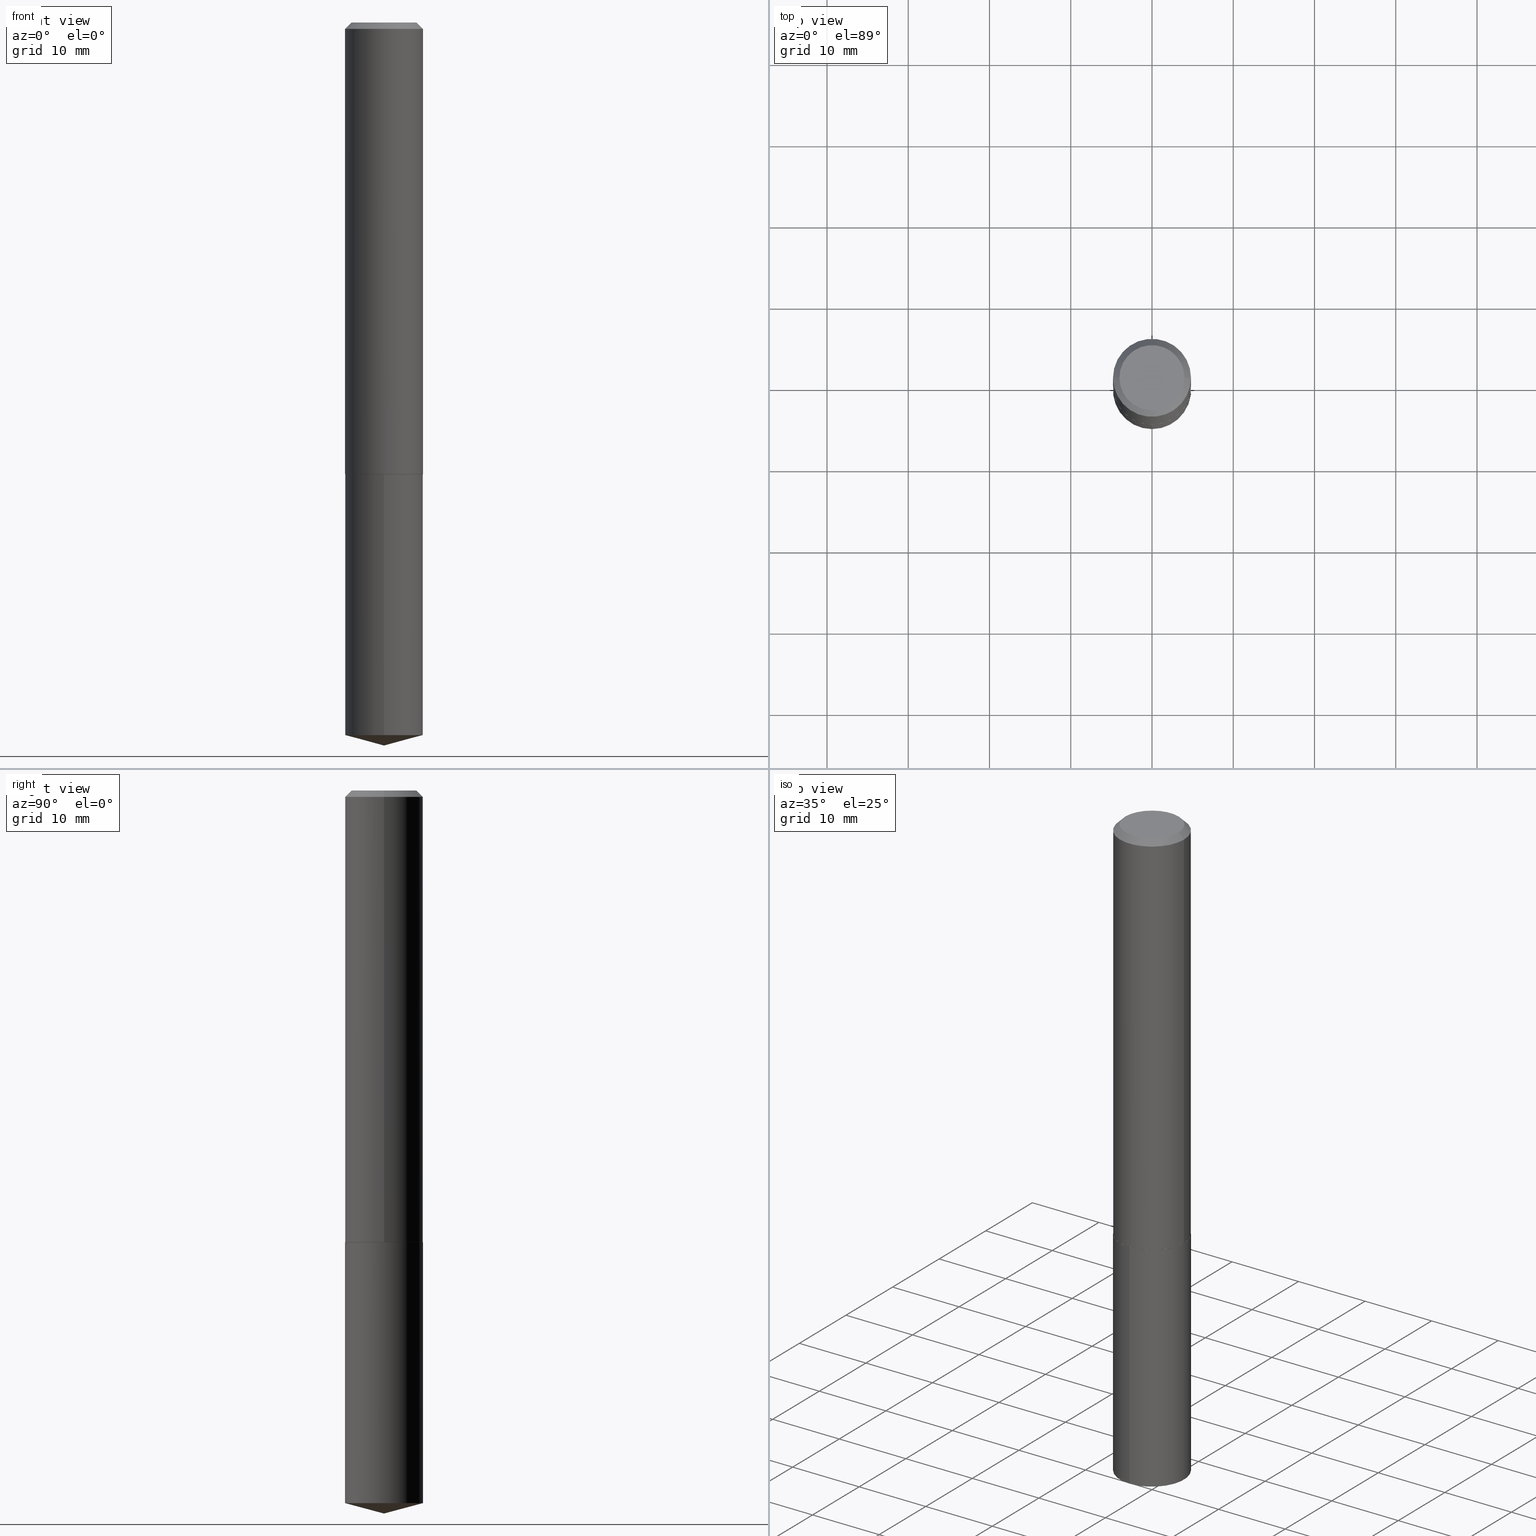
[diagram: canonical four-view strip — front | top / right | iso, engineering-drawing reading convention]
A machine part, canonical four-view strip (front | top / right | iso — engineering-drawing reading convention). The complete STEP part file that produces these views, byte-faithful:
ISO-10303-21;
HEADER;
FILE_DESCRIPTION (( 'STEP AP203' ),
    '1' );
FILE_NAME ('63084.STEP',
    '2024-04-23T09:49:28',
    ( '' ),
    ( '' ),
    'SwSTEP 2.0',
    'SolidWorks 2023',
    '' );
FILE_SCHEMA (( 'CONFIG_CONTROL_DESIGN' ));
ENDSEC;

DATA;
#1 = DATE_AND_TIME ( #26, #334 ) ;
#2 = CARTESIAN_POINT ( 'NONE',  ( 7.642090019328602662E-31, -1.091087918388490267E-16, -0.03125000000000020817 ) ) ;
#3 = APPROVAL_ROLE ( '' ) ;
#4 = VERTEX_POINT ( 'NONE', #370 ) ;
#5 = DIRECTION ( 'NONE',  ( 1.000000000000000000, -6.982962677686266711E-15, 4.876176775795936353E-29 ) ) ;
#6 = ORIENTED_EDGE ( 'NONE', *, *, #149, .T. ) ;
#7 = ORIENTED_EDGE ( 'NONE', *, *, #362, .T. ) ;
#8 = CARTESIAN_POINT ( 'NONE',  ( 0.000000000000000000, 0.000000000000000000, 0.000000000000000000 ) ) ;
#9 = EDGE_LOOP ( 'NONE', ( #17, #282 ) ) ;
#10 = CC_DESIGN_DATE_AND_TIME_ASSIGNMENT ( #182, #302, ( #49 ) ) ;
#11 = ORIENTED_EDGE ( 'NONE', *, *, #207, .F. ) ;
#12 = CIRCLE ( 'NONE', #366, 0.1577499999999999736 ) ;
#13 = CIRCLE ( 'NONE', #374, 0.1577499999999999736 ) ;
#14 = VECTOR ( 'NONE', #109, 39.37007874015748854 ) ;
#15 = VERTEX_POINT ( 'NONE', #200 ) ;
#16 = CARTESIAN_POINT ( 'NONE',  ( 8.444674337190745942E-29, -1.205721276165754944E-14, -3.453257602630517731 ) ) ;
#17 = ORIENTED_EDGE ( 'NONE', *, *, #161, .T. ) ;
#18 = FACE_OUTER_BOUND ( 'NONE', #9, .T. ) ;
#19 = DIRECTION ( 'NONE',  ( -2.445342716562640584E-29, 3.491661906359135627E-15, 1.000000000000000000 ) ) ;
#20 = CARTESIAN_POINT ( 'NONE',  ( 8.568236344563835167E-29, -1.223443415369177470E-14, -3.503899999999999793 ) ) ;
#21 = CARTESIAN_POINT ( 'NONE',  ( -8.770482294299429228E-28, 1.252329652959682702E-13, 35.86617874015747987 ) ) ;
#22 = DIRECTION ( 'NONE',  ( -2.445342716562640584E-29, 3.491661906359135627E-15, 1.000000000000000000 ) ) ;
#23 = EDGE_CURVE ( 'NONE', #15, #308, #169, .T. ) ;
#24 = VECTOR ( 'NONE', #291, 39.37007874015748143 ) ;
#25 = CALENDAR_DATE ( 2024, 23, 4 ) ;
#26 = CALENDAR_DATE ( 2024, 23, 4 ) ;
#27 = PERSON_AND_ORGANIZATION ( #304, #64 ) ;
#28 = AXIS2_PLACEMENT_3D ( 'NONE', #77, #168, #107 ) ;
#29 = AXIS2_PLACEMENT_3D ( 'NONE', #261, #321, #102 ) ;
#30 = APPROVAL_STATUS ( 'not_yet_approved' ) ;
#31 = DIRECTION ( 'NONE',  ( -2.445468806185136597E-29, 3.491481338843145583E-15, 1.000000000000000000 ) ) ;
#32 = CYLINDRICAL_SURFACE ( 'NONE', #351, 0.1890000000000000846 ) ;
#33 = CONICAL_SURFACE ( 'NONE', #307, 0.1890000000000002234, 0.7853981633974482790 ) ;
#34 = MANIFOLD_SOLID_BREP ( 'Body-Move/Copy2[2]', #97 ) ;
#35 = EDGE_LOOP ( 'NONE', ( #226, #331, #333, #157 ) ) ;
#36 = ORIENTED_EDGE ( 'NONE', *, *, #46, .T. ) ;
#37 = VERTEX_POINT ( 'NONE', #224 ) ;
#38 = LOCAL_TIME ( 5, 49, 28.00000000000000000, #274 ) ;
#39 = APPROVAL ( #30, 'UNSPECIFIED' ) ;
#40 =( CONVERSION_BASED_UNIT ( 'INCH', #192 ) LENGTH_UNIT ( ) NAMED_UNIT ( #147 ) );
#41 = ORIENTED_EDGE ( 'NONE', *, *, #258, .T. ) ;
#42 = CARTESIAN_POINT ( 'NONE',  ( 7.642090019328602662E-31, -1.091087918388490267E-16, -0.03125000000000020817 ) ) ;
#43 = DIRECTION ( 'NONE',  ( 1.000000000000000000, -6.982962677686262766E-15, 0.000000000000000000 ) ) ;
#44 = CARTESIAN_POINT ( 'NONE',  ( 5.353131216739262468E-29, -7.642852650727643969E-15, -2.188999999999999613 ) ) ;
#45 = CARTESIAN_POINT ( 'NONE',  ( 0.1889999999999999736, -1.428888737921553328E-15, -0.03125000000000020817 ) ) ;
#46 = EDGE_CURVE ( 'NONE', #336, #344, #193, .T. ) ;
#47 = ADVANCED_FACE ( 'NONE', ( #372 ), #104, .T. ) ;
#48 = EDGE_LOOP ( 'NONE', ( #347, #222, #252, #159 ) ) ;
#49 = SECURITY_CLASSIFICATION ( '', '', #357 ) ;
#50 = DIRECTION ( 'NONE',  ( 1.000000000000000000, -6.982962677686266711E-15, 4.876176521701035620E-29 ) ) ;
#51 = LINE ( 'NONE', #172, #24 ) ;
#52 = CC_DESIGN_PERSON_AND_ORGANIZATION_ASSIGNMENT ( #238, #150, ( #178 ) ) ;
#53 = ORIENTED_EDGE ( 'NONE', *, *, #240, .F. ) ;
#54 = FACE_OUTER_BOUND ( 'NONE', #136, .T. ) ;
#55 = APPROVAL_DATE_TIME ( #87, #39 ) ;
#56 = CARTESIAN_POINT ( 'NONE',  ( 5.353131216739262468E-29, -7.642852650727643969E-15, -2.188999999999999613 ) ) ;
#57 = APPROVAL_ROLE ( '' ) ;
#58 = PERSON_AND_ORGANIZATION_ROLE ( 'design_owner' ) ;
#59 = DIRECTION ( 'NONE',  ( 1.000000000000000000, 0.000000000000000000, 0.000000000000000000 ) ) ;
#60 = DIRECTION ( 'NONE',  ( -1.000000000000000000, 6.982962677686266711E-15, 0.000000000000000000 ) ) ;
#61 = CC_DESIGN_PERSON_AND_ORGANIZATION_ASSIGNMENT ( #27, #243, ( #170 ) ) ;
#62 = MECHANICAL_CONTEXT ( 'NONE', #369, 'mechanical' ) ;
#63 = AXIS2_PLACEMENT_3D ( 'NONE', #56, #326, #284 ) ;
#64 = ORGANIZATION ( 'UNSPECIFIED', 'UNSPECIFIED', '' ) ;
#65 = CIRCLE ( 'NONE', #281, 0.1890000000000002234 ) ;
#66 = EDGE_CURVE ( 'NONE', #305, #344, #91, .T. ) ;
#67 = FACE_OUTER_BOUND ( 'NONE', #71, .T. ) ;
#68 = ORIENTED_EDGE ( 'NONE', *, *, #328, .F. ) ;
#69 = CIRCLE ( 'NONE', #137, 0.1885000000000003340 ) ;
#70 = ORIENTED_EDGE ( 'NONE', *, *, #245, .T. ) ;
#71 = EDGE_LOOP ( 'NONE', ( #153, #319 ) ) ;
#72 = ORIENTED_EDGE ( 'NONE', *, *, #328, .T. ) ;
#73 = DIRECTION ( 'NONE',  ( 1.000000000000000000, -6.982962677686266711E-15, 4.876176775795936353E-29 ) ) ;
#74 = ORIENTED_EDGE ( 'NONE', *, *, #218, .F. ) ;
#75 = CONICAL_SURFACE ( 'NONE', #241, 0.1890000000000002234, 0.7853981633974482790 ) ;
#76 = DIRECTION ( 'NONE',  ( -6.982962677686265133E-15, -1.000000000000000000, 3.510303681827624656E-15 ) ) ;
#77 = CARTESIAN_POINT ( 'NONE',  ( 7.642090019328602662E-31, -1.091087918388490267E-16, -0.03125000000000020817 ) ) ;
#78 = EDGE_LOOP ( 'NONE', ( #361, #7, #259, #173 ) ) ;
#79 = CARTESIAN_POINT ( 'NONE',  ( 5.353131216739262468E-29, -7.642852650727643969E-15, -2.188999999999999613 ) ) ;
#80 = CARTESIAN_POINT ( 'NONE',  ( -0.1577499999999999736, 1.156116758324431759E-15, 4.837354856553074411E-19 ) ) ;
#81 = DIRECTION ( 'NONE',  ( 2.438088387897960049E-29, -3.491481338843145188E-15, -1.000000000000000000 ) ) ;
#82 = CARTESIAN_POINT ( 'NONE',  ( -1.319779946082650387E-15, -0.1890000000000076341, -2.188999999999999169 ) ) ;
#83 = EDGE_LOOP ( 'NONE', ( #278, #219, #195, #72 ) ) ;
#84 = CONICAL_SURFACE ( 'NONE', #202, 146.9311341562556663, 1.308996938995748316 ) ;
#85 = CC_DESIGN_APPROVAL ( #39, ( #49 ) ) ;
#86 = CARTESIAN_POINT ( 'NONE',  ( -0.1885000000000003340, -6.300830366645742333E-15, -2.188999999999999613 ) ) ;
#87 = DATE_AND_TIME ( #116, #144 ) ;
#88 = DIRECTION ( 'NONE',  ( 0.7071067811865474617, -2.468850131082256666E-15, 0.7071067811865474617 ) ) ;
#89 = AXIS2_PLACEMENT_3D ( 'NONE', #345, #134, #73 ) ;
#90 = COORDINATED_UNIVERSAL_TIME_OFFSET ( 5, 0, .BEHIND. ) ;
#91 = CIRCLE ( 'NONE', #250, 0.1889999999999999736 ) ;
#92 = CC_DESIGN_APPROVAL ( #299, ( #178 ) ) ;
#93 = ADVANCED_FACE ( 'NONE', ( #18 ), #108, .F. ) ;
#94 = ORIENTED_EDGE ( 'NONE', *, *, #46, .F. ) ;
#95 = ORIENTED_EDGE ( 'NONE', *, *, #330, .F. ) ;
#96 = CONICAL_SURFACE ( 'NONE', #257, 146.9311341562556663, 1.308996938995748316 ) ;
#97 = CLOSED_SHELL ( 'NONE', ( #246, #117, #231, #118, #386, #337, #156, #93 ) ) ;
#98 = PLANE ( 'NONE',  #183 ) ;
#99 = EDGE_LOOP ( 'NONE', ( #94, #285, #217 ) ) ;
#100 = CARTESIAN_POINT ( 'NONE',  ( 0.1890000000000000846, -1.319779946082705016E-15, 9.215974106254323525E-30 ) ) ;
#101 =( LENGTH_UNIT ( ) NAMED_UNIT ( * ) SI_UNIT ( $, .METRE. ) );
#102 = DIRECTION ( 'NONE',  ( 1.000000000000000000, -6.982962677686262766E-15, 0.000000000000000000 ) ) ;
#103 = ADVANCED_FACE ( 'NONE', ( #262 ), #84, .T. ) ;
#104 = CYLINDRICAL_SURFACE ( 'NONE', #349, 0.1889999999999999736 ) ;
#105 = CIRCLE ( 'NONE', #29, 0.1890000000000002234 ) ;
#106 = CARTESIAN_POINT ( 'NONE',  ( -1.182960040634176917E-47, 1.688953421129294557E-33, 4.837354856632017316E-19 ) ) ;
#107 = DIRECTION ( 'NONE',  ( -1.000000000000000000, 6.982962677686266711E-15, 0.000000000000000000 ) ) ;
#108 = PLANE ( 'NONE',  #368 ) ;
#109 = DIRECTION ( 'NONE',  ( -0.7071067811865474617, 7.493145998870352582E-15, 0.7071067811865474617 ) ) ;
#110 = DIRECTION ( 'NONE',  ( -2.445342716562640584E-29, 3.491661906359135627E-15, 1.000000000000000000 ) ) ;
#111 = CARTESIAN_POINT ( 'NONE',  ( -0.1890000000000000846, 1.342925770586589952E-15, -9.296787320581776866E-30 ) ) ;
#112 = AXIS2_PLACEMENT_3D ( 'NONE', #375, #142, #378 ) ;
#113 = CIRCLE ( 'NONE', #160, 0.1889999999999999736 ) ;
#114 = CARTESIAN_POINT ( 'NONE',  ( 0.1890000000000002234, -8.960886856140928862E-15, -2.188499999999999446 ) ) ;
#115 = APPLICATION_PROTOCOL_DEFINITION ( 'international standard', 'config_control_design', 1994, #369 ) ;
#116 = CALENDAR_DATE ( 2024, 23, 4 ) ;
#117 = ADVANCED_FACE ( 'NONE', ( #249 ), #32, .T. ) ;
#118 = ADVANCED_FACE ( 'NONE', ( #67 ), #98, .F. ) ;
#119 = CALENDAR_DATE ( 2024, 23, 4 ) ;
#120 = AXIS2_PLACEMENT_3D ( 'NONE', #355, #214, #60 ) ;
#121 = CC_DESIGN_PERSON_AND_ORGANIZATION_ASSIGNMENT ( #122, #210, ( #170 ) ) ;
#122 = PERSON_AND_ORGANIZATION ( #304, #64 ) ;
#123 = EDGE_CURVE ( 'NONE', #316, #341, #221, .T. ) ;
#124 = VERTEX_POINT ( 'NONE', #379 ) ;
#125 = PRODUCT ( '63084', '63084', '', ( #62 ) ) ;
#126 = CARTESIAN_POINT ( 'NONE',  ( -0.1890000000000002234, -6.298181139471631921E-15, -2.188499999999999446 ) ) ;
#127 = ORIENTED_EDGE ( 'NONE', *, *, #23, .T. ) ;
#128 = EDGE_CURVE ( 'NONE', #305, #4, #141, .T. ) ;
#129 = CONICAL_SURFACE ( 'NONE', #120, 0.1889999999999999736, 0.7853981633974450594 ) ;
#130 = ORIENTED_EDGE ( 'NONE', *, *, #216, .T. ) ;
#131 = EDGE_CURVE ( 'NONE', #15, #341, #65, .T. ) ;
#132 = CARTESIAN_POINT ( 'NONE',  ( 5.351908482336170787E-29, -7.641106910058223254E-15, -2.188499999999999446 ) ) ;
#133 = EDGE_LOOP ( 'NONE', ( #338, #152, #127, #68 ) ) ;
#134 = DIRECTION ( 'NONE',  ( -2.445468806185136597E-29, 3.491481338843145583E-15, 1.000000000000000000 ) ) ;
#135 = PLANE ( 'NONE',  #63 ) ;
#136 = EDGE_LOOP ( 'NONE', ( #184, #234, #70, #74 ) ) ;
#137 = AXIS2_PLACEMENT_3D ( 'NONE', #203, #324, #162 ) ;
#138 = DIRECTION ( 'NONE',  ( -6.982962677686265922E-15, -1.000000000000000000, 2.890844437739961472E-15 ) ) ;
#139 = DIRECTION ( 'NONE',  ( -2.445468806185136877E-29, 3.491481338843145188E-15, 1.000000000000000000 ) ) ;
#140 = CARTESIAN_POINT ( 'NONE',  ( 1.342925770586672783E-15, 0.1889999999999878166, -3.453257602630518175 ) ) ;
#141 = LINE ( 'NONE', #376, #146 ) ;
#142 = DIRECTION ( 'NONE',  ( -2.445468806185136597E-29, 3.491481338843145583E-15, 1.000000000000000000 ) ) ;
#143 = DIRECTION ( 'NONE',  ( -2.445342716562640584E-29, 3.491661906359135627E-15, 1.000000000000000000 ) ) ;
#144 = LOCAL_TIME ( 5, 49, 28.00000000000000000, #325 ) ;
#145 = APPROVAL_ROLE ( '' ) ;
#146 = VECTOR ( 'NONE', #22, 39.37007874015748143 ) ;
#147 = DIMENSIONAL_EXPONENTS ( 1.000000000000000000, 0.000000000000000000, 0.000000000000000000, 0.000000000000000000, 0.000000000000000000, 0.000000000000000000, 0.000000000000000000 ) ;
#148 = PERSON_AND_ORGANIZATION ( #304, #64 ) ;
#149 = EDGE_CURVE ( 'NONE', #215, #4, #113, .T. ) ;
#150 = PERSON_AND_ORGANIZATION_ROLE ( 'creator' ) ;
#151 = VECTOR ( 'NONE', #139, 39.37007874015748143 ) ;
#152 = ORIENTED_EDGE ( 'NONE', *, *, #230, .T. ) ;
#153 = ORIENTED_EDGE ( 'NONE', *, *, #275, .F. ) ;
#154 = AXIS2_PLACEMENT_3D ( 'NONE', #42, #290, #311 ) ;
#155 = DIRECTION ( 'NONE',  ( 1.000000000000000000, -6.982962677686265922E-15, 4.876176775795935793E-29 ) ) ;
#156 = ADVANCED_FACE ( 'NONE', ( #205 ), #199, .T. ) ;
#157 = ORIENTED_EDGE ( 'NONE', *, *, #23, .F. ) ;
#158 = AXIS2_PLACEMENT_3D ( 'NONE', #2, #31, #232 ) ;
#159 = ORIENTED_EDGE ( 'NONE', *, *, #179, .F. ) ;
#160 = AXIS2_PLACEMENT_3D ( 'NONE', #293, #143, #239 ) ;
#161 = EDGE_CURVE ( 'NONE', #164, #37, #12, .T. ) ;
#162 = DIRECTION ( 'NONE',  ( 1.000000000000000000, -6.982962677686266711E-15, 0.000000000000000000 ) ) ;
#163 = DIRECTION ( 'NONE',  ( -6.982962677686265133E-15, -1.000000000000000000, 3.510303681827624656E-15 ) ) ;
#164 = VERTEX_POINT ( 'NONE', #80 ) ;
#165 = LINE ( 'NONE', #114, #237 ) ;
#166 = DIRECTION ( 'NONE',  ( -2.445342716562640584E-29, 3.491661906359135627E-15, 1.000000000000000000 ) ) ;
#167 = DIRECTION ( 'NONE',  ( -2.445468806185136597E-29, 3.491481338843145583E-15, 1.000000000000000000 ) ) ;
#168 = DIRECTION ( 'NONE',  ( 2.445468806185136597E-29, -3.491481338843145583E-15, -1.000000000000000000 ) ) ;
#169 = LINE ( 'NONE', #100, #151 ) ;
#170 = PRODUCT_DEFINITION_FORMATION_WITH_SPECIFIED_SOURCE ( 'ANY', '', #125, .NOT_KNOWN. ) ;
#171 = PRODUCT_DEFINITION_SHAPE ( 'NONE', 'NONE',  #178 ) ;
#172 = CARTESIAN_POINT ( 'NONE',  ( -1.319779946082650387E-15, -0.1890000000000076341, -2.188999999999999169 ) ) ;
#173 = ORIENTED_EDGE ( 'NONE', *, *, #230, .F. ) ;
#174 = CYLINDRICAL_SURFACE ( 'NONE', #186, 0.1889999999999999736 ) ;
#175 = SHAPE_DEFINITION_REPRESENTATION ( #171, #206 ) ;
#176 = CARTESIAN_POINT ( 'NONE',  ( 0.1889999999999999736, -1.405742913417668391E-15, -0.03125000000000020817 ) ) ;
#177 = CIRCLE ( 'NONE', #322, 0.1889999999999999736 ) ;
#178 = PRODUCT_DEFINITION ( 'UNKNOWN', '', #170, #373 ) ;
#179 = EDGE_CURVE ( 'NONE', #124, #15, #165, .T. ) ;
#180 = PERSON_AND_ORGANIZATION ( #304, #64 ) ;
#181 = APPLICATION_PROTOCOL_DEFINITION ( 'international standard', 'config_control_design', 1994, #212 ) ;
#182 = DATE_AND_TIME ( #25, #248 ) ;
#183 = AXIS2_PLACEMENT_3D ( 'NONE', #364, #360, #155 ) ;
#184 = ORIENTED_EDGE ( 'NONE', *, *, #128, .F. ) ;
#185 = ADVANCED_FACE ( 'NONE', ( #346 ), #135, .F. ) ;
#186 = AXIS2_PLACEMENT_3D ( 'NONE', #79, #283, #317 ) ;
#187 = VERTEX_POINT ( 'NONE', #194 ) ;
#188 = CC_DESIGN_DATE_AND_TIME_ASSIGNMENT ( #1, #270, ( #178 ) ) ;
#189 = ORIENTED_EDGE ( 'NONE', *, *, #245, .F. ) ;
#190 = CC_DESIGN_PERSON_AND_ORGANIZATION_ASSIGNMENT ( #148, #58, ( #125 ) ) ;
#191 = EDGE_LOOP ( 'NONE', ( #6, #310 ) ) ;
#192 = LENGTH_MEASURE_WITH_UNIT ( LENGTH_MEASURE( 0.02539999999999999897 ), #101 );
#193 = LINE ( 'NONE', #20, #303 ) ;
#194 = CARTESIAN_POINT ( 'NONE',  ( -0.1889999999999999736, -2.532182080361945239E-15, -0.03125000000000020817 ) ) ;
#195 = ORIENTED_EDGE ( 'NONE', *, *, #207, .T. ) ;
#196 = CARTESIAN_POINT ( 'NONE',  ( 8.568793205498136737E-29, -1.223364362910677188E-14, -3.503899999999999793 ) ) ;
#197 = DIRECTION ( 'NONE',  ( -1.000000000000000000, 6.982962677686265922E-15, -4.876176775795935793E-29 ) ) ;
#198 = CARTESIAN_POINT ( 'NONE',  ( 5.353131216739262468E-29, -7.642852650727643969E-15, -2.188999999999999613 ) ) ;
#199 = CONICAL_SURFACE ( 'NONE', #28, 0.1889999999999999736, 0.7853981633974450594 ) ;
#200 = CARTESIAN_POINT ( 'NONE',  ( 0.1890000000000002234, -8.960886856140928862E-15, -2.188499999999999446 ) ) ;
#201 = AXIS2_PLACEMENT_3D ( 'NONE', #198, #343, #138 ) ;
#202 = AXIS2_PLACEMENT_3D ( 'NONE', #380, #110, #163 ) ;
#203 = CARTESIAN_POINT ( 'NONE',  ( 5.353131216739262468E-29, -7.642852650727643969E-15, -2.188999999999999613 ) ) ;
#204 = FACE_OUTER_BOUND ( 'NONE', #48, .T. ) ;
#205 = FACE_OUTER_BOUND ( 'NONE', #83, .T. ) ;
#206 = ADVANCED_BREP_SHAPE_REPRESENTATION ( '63084', ( #300, #34, #213 ), #367 ) ;
#207 = EDGE_CURVE ( 'NONE', #164, #187, #228, .T. ) ;
#208 = APPROVAL_STATUS ( 'not_yet_approved' ) ;
#209 = APPROVAL ( #388, 'UNSPECIFIED' ) ;
#210 = PERSON_AND_ORGANIZATION_ROLE ( 'creator' ) ;
#211 = PERSON_AND_ORGANIZATION_ROLE ( 'classification_officer' ) ;
#212 = APPLICATION_CONTEXT ( 'configuration controlled 3d designs of mechanical parts and assemblies' ) ;
#213 = AXIS2_PLACEMENT_3D ( 'NONE', #242, #298, #59 ) ;
#214 = DIRECTION ( 'NONE',  ( 2.445468806185136597E-29, -3.491481338843145583E-15, -1.000000000000000000 ) ) ;
#215 = VERTEX_POINT ( 'NONE', #82 ) ;
#216 = EDGE_CURVE ( 'NONE', #344, #305, #177, .T. ) ;
#217 = ORIENTED_EDGE ( 'NONE', *, *, #216, .F. ) ;
#218 = EDGE_CURVE ( 'NONE', #4, #215, #268, .T. ) ;
#219 = ORIENTED_EDGE ( 'NONE', *, *, #161, .F. ) ;
#220 = VECTOR ( 'NONE', #318, 39.37007874015748854 ) ;
#221 = LINE ( 'NONE', #126, #14 ) ;
#222 = ORIENTED_EDGE ( 'NONE', *, *, #123, .T. ) ;
#223 = CC_DESIGN_PERSON_AND_ORGANIZATION_ASSIGNMENT ( #297, #211, ( #49 ) ) ;
#224 = CARTESIAN_POINT ( 'NONE',  ( 0.1577499999999999736, -1.243993236283063660E-15, 4.837354856714027265E-19 ) ) ;
#225 = LOCAL_TIME ( 5, 49, 28.00000000000000000, #269 ) ;
#226 = ORIENTED_EDGE ( 'NONE', *, *, #131, .T. ) ;
#227 = CARTESIAN_POINT ( 'NONE',  ( -1.319779946082618833E-15, -0.1890000000000119362, -3.453257602630517287 ) ) ;
#228 = LINE ( 'NONE', #371, #280 ) ;
#229 = CARTESIAN_POINT ( 'NONE',  ( -5.914800203170884586E-48, 8.444767105646472787E-34, 2.418677428316008658E-19 ) ) ;
#230 = EDGE_CURVE ( 'NONE', #341, #15, #105, .T. ) ;
#231 = ADVANCED_FACE ( 'NONE', ( #204 ), #33, .T. ) ;
#232 = DIRECTION ( 'NONE',  ( 1.000000000000000000, -6.982962677686266711E-15, 0.000000000000000000 ) ) ;
#233 = DIRECTION ( 'NONE',  ( -2.445468806185136597E-29, 3.491481338843145583E-15, 1.000000000000000000 ) ) ;
#234 = ORIENTED_EDGE ( 'NONE', *, *, #66, .T. ) ;
#235 = FACE_OUTER_BOUND ( 'NONE', #309, .T. ) ;
#236 = DIRECTION ( 'NONE',  ( -6.982962677686265922E-15, -1.000000000000000000, 2.890844437739961472E-15 ) ) ;
#237 = VECTOR ( 'NONE', #88, 39.37007874015748854 ) ;
#238 = PERSON_AND_ORGANIZATION ( #304, #64 ) ;
#239 = DIRECTION ( 'NONE',  ( -6.982962677686265922E-15, -1.000000000000000000, 2.890844437739961472E-15 ) ) ;
#240 = EDGE_CURVE ( 'NONE', #336, #305, #256, .T. ) ;
#241 = AXIS2_PLACEMENT_3D ( 'NONE', #383, #167, #288 ) ;
#242 = CARTESIAN_POINT ( 'NONE',  ( 0.000000000000000000, 0.000000000000000000, 0.000000000000000000 ) ) ;
#243 = PERSON_AND_ORGANIZATION_ROLE ( 'design_supplier' ) ;
#244 = CIRCLE ( 'NONE', #112, 0.1885000000000003340 ) ;
#245 = EDGE_CURVE ( 'NONE', #344, #215, #51, .T. ) ;
#246 = ADVANCED_FACE ( 'NONE', ( #358 ), #129, .T. ) ;
#247 = DIRECTION ( 'NONE',  ( -2.445468806185136597E-29, 3.491481338843145583E-15, 1.000000000000000000 ) ) ;
#248 = LOCAL_TIME ( 5, 49, 28.00000000000000000, #90 ) ;
#249 = FACE_OUTER_BOUND ( 'NONE', #35, .T. ) ;
#250 = AXIS2_PLACEMENT_3D ( 'NONE', #289, #323, #377 ) ;
#251 = EDGE_LOOP ( 'NONE', ( #95, #41, #306, #11 ) ) ;
#252 = ORIENTED_EDGE ( 'NONE', *, *, #131, .F. ) ;
#253 =( NAMED_UNIT ( * ) PLANE_ANGLE_UNIT ( ) SI_UNIT ( $, .RADIAN. ) );
#254 = ORIENTED_EDGE ( 'NONE', *, *, #66, .F. ) ;
#255 = DIRECTION ( 'NONE',  ( -2.445468806185136877E-29, 3.491481338843145188E-15, 1.000000000000000000 ) ) ;
#256 = LINE ( 'NONE', #196, #220 ) ;
#257 = AXIS2_PLACEMENT_3D ( 'NONE', #21, #320, #76 ) ;
#258 = EDGE_CURVE ( 'NONE', #37, #308, #389, .T. ) ;
#259 = ORIENTED_EDGE ( 'NONE', *, *, #179, .T. ) ;
#260 = EDGE_CURVE ( 'NONE', #308, #187, #350, .T. ) ;
#261 = CARTESIAN_POINT ( 'NONE',  ( 5.351908482336170787E-29, -7.641106910058223254E-15, -2.188499999999999446 ) ) ;
#262 = FACE_OUTER_BOUND ( 'NONE', #99, .T. ) ;
#263 = DIRECTION ( 'NONE',  ( -2.445468806185136597E-29, 3.491481338843145583E-15, 1.000000000000000000 ) ) ;
#264 = DIRECTION ( 'NONE',  ( 1.000000000000000000, -6.982962677686266711E-15, 4.876176521701035620E-29 ) ) ;
#265 = EDGE_CURVE ( 'NONE', #341, #187, #381, .T. ) ;
#266 = CYLINDRICAL_SURFACE ( 'NONE', #89, 0.1890000000000000846 ) ;
#267 = CARTESIAN_POINT ( 'NONE',  ( -1.182960040634176917E-47, 1.688953421129294557E-33, 4.837354856632017316E-19 ) ) ;
#268 = CIRCLE ( 'NONE', #201, 0.1889999999999999736 ) ;
#269 = COORDINATED_UNIVERSAL_TIME_OFFSET ( 5, 0, .BEHIND. ) ;
#270 = DATE_TIME_ROLE ( 'creation_date' ) ;
#271 = APPROVAL_PERSON_ORGANIZATION ( #387, #39, #145 ) ;
#272 = APPROVAL_DATE_TIME ( #294, #299 ) ;
#273 = CLOSED_SHELL ( 'NONE', ( #47, #103, #314, #363, #185 ) ) ;
#274 = COORDINATED_UNIVERSAL_TIME_OFFSET ( 5, 0, .BEHIND. ) ;
#275 = EDGE_CURVE ( 'NONE', #124, #316, #244, .T. ) ;
#276 = ORIENTED_EDGE ( 'NONE', *, *, #128, .T. ) ;
#277 = VECTOR ( 'NONE', #295, 39.37007874015748143 ) ;
#278 = ORIENTED_EDGE ( 'NONE', *, *, #258, .F. ) ;
#279 = PRODUCT_RELATED_PRODUCT_CATEGORY ( 'detail', '', ( #125 ) ) ;
#280 = VECTOR ( 'NONE', #382, 39.37007874015748143 ) ;
#281 = AXIS2_PLACEMENT_3D ( 'NONE', #132, #233, #353 ) ;
#282 = ORIENTED_EDGE ( 'NONE', *, *, #330, .T. ) ;
#283 = DIRECTION ( 'NONE',  ( -2.445342716562640584E-29, 3.491661906359135627E-15, 1.000000000000000000 ) ) ;
#284 = DIRECTION ( 'NONE',  ( 6.982962677686265922E-15, 1.000000000000000000, -3.491661906359135627E-15 ) ) ;
#285 = ORIENTED_EDGE ( 'NONE', *, *, #240, .T. ) ;
#286 = CARTESIAN_POINT ( 'NONE',  ( 5.351908482336170787E-29, -7.641106910058223254E-15, -2.188499999999999446 ) ) ;
#287 = DIRECTION ( 'NONE',  ( -6.982962677686265922E-15, -1.000000000000000000, 2.890844437739961472E-15 ) ) ;
#288 = DIRECTION ( 'NONE',  ( 1.000000000000000000, -6.982962677686262766E-15, 0.000000000000000000 ) ) ;
#289 = CARTESIAN_POINT ( 'NONE',  ( 8.444674337190745942E-29, -1.205721276165754944E-14, -3.453257602630517731 ) ) ;
#290 = DIRECTION ( 'NONE',  ( -2.445468806185136597E-29, 3.491481338843145583E-15, 1.000000000000000000 ) ) ;
#291 = DIRECTION ( 'NONE',  ( -2.445342716562640584E-29, 3.491661906359135627E-15, 1.000000000000000000 ) ) ;
#292 = FACE_OUTER_BOUND ( 'NONE', #78, .T. ) ;
#293 = CARTESIAN_POINT ( 'NONE',  ( 5.353131216739262468E-29, -7.642852650727643969E-15, -2.188999999999999613 ) ) ;
#294 = DATE_AND_TIME ( #329, #38 ) ;
#295 = DIRECTION ( 'NONE',  ( 0.7071067811865452413, -7.319954787623248157E-15, -0.7071067811865497932 ) ) ;
#296 = CIRCLE ( 'NONE', #154, 0.1889999999999999736 ) ;
#297 = PERSON_AND_ORGANIZATION ( #304, #64 ) ;
#298 = DIRECTION ( 'NONE',  ( 0.000000000000000000, 0.000000000000000000, 1.000000000000000000 ) ) ;
#299 = APPROVAL ( #208, 'UNSPECIFIED' ) ;
#300 = MANIFOLD_SOLID_BREP ( 'Body-Move/Copy2[1]', #273 ) ;
#301 = DATE_AND_TIME ( #119, #225 ) ;
#302 = DATE_TIME_ROLE ( 'classification_date' ) ;
#303 = VECTOR ( 'NONE', #313, 39.37007874015748143 ) ;
#304 = PERSON ( 'UNSPECIFIED', 'UNSPECIFIED', 'UNSPECIFIED', ('UNSPECIFIED'), ('UNSPECIFIED'), ('UNSPECIFIED') ) ;
#305 = VERTEX_POINT ( 'NONE', #140 ) ;
#306 = ORIENTED_EDGE ( 'NONE', *, *, #260, .T. ) ;
#307 = AXIS2_PLACEMENT_3D ( 'NONE', #286, #315, #43 ) ;
#308 = VERTEX_POINT ( 'NONE', #45 ) ;
#309 = EDGE_LOOP ( 'NONE', ( #53, #36, #254 ) ) ;
#310 = ORIENTED_EDGE ( 'NONE', *, *, #218, .T. ) ;
#311 = DIRECTION ( 'NONE',  ( 1.000000000000000000, -6.982962677686266711E-15, 0.000000000000000000 ) ) ;
#312 = APPROVAL_PERSON_ORGANIZATION ( #385, #209, #57 ) ;
#313 = DIRECTION ( 'NONE',  ( -6.745023994389839133E-15, -0.9659258262890676461, 0.2588190451025230709 ) ) ;
#314 = ADVANCED_FACE ( 'NONE', ( #235 ), #96, .T. ) ;
#315 = DIRECTION ( 'NONE',  ( -2.445468806185136597E-29, 3.491481338843145583E-15, 1.000000000000000000 ) ) ;
#316 = VERTEX_POINT ( 'NONE', #86 ) ;
#317 = DIRECTION ( 'NONE',  ( -6.982962677686265922E-15, -1.000000000000000000, 2.890844437739961472E-15 ) ) ;
#318 = DIRECTION ( 'NONE',  ( 6.863315791527694259E-15, 0.9659258262890694224, 0.2588190451025162986 ) ) ;
#319 = ORIENTED_EDGE ( 'NONE', *, *, #362, .F. ) ;
#320 = DIRECTION ( 'NONE',  ( -2.445342716562640584E-29, 3.491661906359135627E-15, 1.000000000000000000 ) ) ;
#321 = DIRECTION ( 'NONE',  ( -2.445468806185136597E-29, 3.491481338843145583E-15, 1.000000000000000000 ) ) ;
#322 = AXIS2_PLACEMENT_3D ( 'NONE', #16, #19, #236 ) ;
#323 = DIRECTION ( 'NONE',  ( -2.445342716562640584E-29, 3.491661906359135627E-15, 1.000000000000000000 ) ) ;
#324 = DIRECTION ( 'NONE',  ( -2.445468806185136597E-29, 3.491481338843145583E-15, 1.000000000000000000 ) ) ;
#325 = COORDINATED_UNIVERSAL_TIME_OFFSET ( 5, 0, .BEHIND. ) ;
#326 = DIRECTION ( 'NONE',  ( 2.445342716562640304E-29, -3.491661906359135627E-15, -1.000000000000000000 ) ) ;
#327 = VECTOR ( 'NONE', #255, 39.37007874015748143 ) ;
#328 = EDGE_CURVE ( 'NONE', #187, #308, #296, .T. ) ;
#329 = CALENDAR_DATE ( 2024, 23, 4 ) ;
#330 = EDGE_CURVE ( 'NONE', #37, #164, #13, .T. ) ;
#331 = ORIENTED_EDGE ( 'NONE', *, *, #265, .T. ) ;
#332 = ORIENTED_EDGE ( 'NONE', *, *, #149, .F. ) ;
#333 = ORIENTED_EDGE ( 'NONE', *, *, #260, .F. ) ;
#334 = LOCAL_TIME ( 5, 49, 28.00000000000000000, #352 ) ;
#335 = UNCERTAINTY_MEASURE_WITH_UNIT (LENGTH_MEASURE( 1.000000000000000082E-05 ), #40, 'distance_accuracy_value', 'NONE');
#336 = VERTEX_POINT ( 'NONE', #339 ) ;
#337 = ADVANCED_FACE ( 'NONE', ( #348 ), #266, .T. ) ;
#338 = ORIENTED_EDGE ( 'NONE', *, *, #265, .F. ) ;
#339 = CARTESIAN_POINT ( 'NONE',  ( 8.568236344563836288E-29, -1.223443415369177470E-14, -3.503899999999999793 ) ) ;
#340 = APPROVAL_PERSON_ORGANIZATION ( #180, #299, #3 ) ;
#341 = VERTEX_POINT ( 'NONE', #342 ) ;
#342 = CARTESIAN_POINT ( 'NONE',  ( -0.1890000000000002234, -6.298181139471631921E-15, -2.188499999999999446 ) ) ;
#343 = DIRECTION ( 'NONE',  ( -2.445342716562640584E-29, 3.491661906359135627E-15, 1.000000000000000000 ) ) ;
#344 = VERTEX_POINT ( 'NONE', #227 ) ;
#345 = CARTESIAN_POINT ( 'NONE',  ( 0.000000000000000000, 0.000000000000000000, 0.000000000000000000 ) ) ;
#346 = FACE_OUTER_BOUND ( 'NONE', #191, .T. ) ;
#347 = ORIENTED_EDGE ( 'NONE', *, *, #275, .T. ) ;
#348 = FACE_OUTER_BOUND ( 'NONE', #133, .T. ) ;
#349 = AXIS2_PLACEMENT_3D ( 'NONE', #44, #166, #287 ) ;
#350 = CIRCLE ( 'NONE', #158, 0.1889999999999999736 ) ;
#351 = AXIS2_PLACEMENT_3D ( 'NONE', #8, #247, #5 ) ;
#352 = COORDINATED_UNIVERSAL_TIME_OFFSET ( 5, 0, .BEHIND. ) ;
#353 = DIRECTION ( 'NONE',  ( 1.000000000000000000, -6.982962677686262766E-15, 0.000000000000000000 ) ) ;
#354 =( NAMED_UNIT ( * ) SI_UNIT ( $, .STERADIAN. ) SOLID_ANGLE_UNIT ( ) );
#355 = CARTESIAN_POINT ( 'NONE',  ( 7.642090019328602662E-31, -1.091087918388490267E-16, -0.03125000000000020817 ) ) ;
#356 = APPROVAL_DATE_TIME ( #301, #209 ) ;
#357 = SECURITY_CLASSIFICATION_LEVEL ( 'unclassified' ) ;
#358 = FACE_OUTER_BOUND ( 'NONE', #251, .T. ) ;
#359 = CC_DESIGN_SECURITY_CLASSIFICATION ( #49, ( #170 ) ) ;
#360 = DIRECTION ( 'NONE',  ( -2.438088387897960049E-29, 3.491481338843145188E-15, 1.000000000000000000 ) ) ;
#361 = ORIENTED_EDGE ( 'NONE', *, *, #123, .F. ) ;
#362 = EDGE_CURVE ( 'NONE', #316, #124, #69, .T. ) ;
#363 = ADVANCED_FACE ( 'NONE', ( #54 ), #174, .T. ) ;
#364 = CARTESIAN_POINT ( 'NONE',  ( 5.353131216739262468E-29, -7.642852650727643969E-15, -2.188999999999999613 ) ) ;
#365 = EDGE_LOOP ( 'NONE', ( #130, #276, #332, #189 ) ) ;
#366 = AXIS2_PLACEMENT_3D ( 'NONE', #267, #384, #264 ) ;
#367 =( GEOMETRIC_REPRESENTATION_CONTEXT ( 3 ) GLOBAL_UNCERTAINTY_ASSIGNED_CONTEXT ( ( #335 ) ) GLOBAL_UNIT_ASSIGNED_CONTEXT ( ( #40, #253, #354 ) ) REPRESENTATION_CONTEXT ( 'NONE', 'WORKASPACE' ) );
#368 = AXIS2_PLACEMENT_3D ( 'NONE', #229, #81, #197 ) ;
#369 = APPLICATION_CONTEXT ( 'configuration controlled 3d designs of mechanical parts and assemblies' ) ;
#370 = CARTESIAN_POINT ( 'NONE',  ( 1.342925770586673769E-15, 0.1889999999999923408, -2.189000000000000057 ) ) ;
#371 = CARTESIAN_POINT ( 'NONE',  ( -0.1889999999999999736, 1.210671154243855126E-15, -0.03125000000000020817 ) ) ;
#372 = FACE_OUTER_BOUND ( 'NONE', #365, .T. ) ;
#373 = DESIGN_CONTEXT ( 'detailed design', #212, 'design' ) ;
#374 = AXIS2_PLACEMENT_3D ( 'NONE', #106, #263, #50 ) ;
#375 = CARTESIAN_POINT ( 'NONE',  ( 5.353131216739262468E-29, -7.642852650727643969E-15, -2.188999999999999613 ) ) ;
#376 = CARTESIAN_POINT ( 'NONE',  ( 1.342925770586642609E-15, 0.1889999999999923408, -2.189000000000000057 ) ) ;
#377 = DIRECTION ( 'NONE',  ( -6.982962677686265922E-15, -1.000000000000000000, 2.890844437739961472E-15 ) ) ;
#378 = DIRECTION ( 'NONE',  ( 1.000000000000000000, -6.982962677686266711E-15, 0.000000000000000000 ) ) ;
#379 = CARTESIAN_POINT ( 'NONE',  ( 0.1885000000000003340, -8.959141115471508147E-15, -2.188999999999999613 ) ) ;
#380 = CARTESIAN_POINT ( 'NONE',  ( -8.770482294299429228E-28, 1.252329652959682702E-13, 35.86617874015747987 ) ) ;
#381 = LINE ( 'NONE', #111, #327 ) ;
#382 = DIRECTION ( 'NONE',  ( -0.7071067811865452413, 2.468850131082233000E-15, -0.7071067811865497932 ) ) ;
#383 = CARTESIAN_POINT ( 'NONE',  ( 5.351908482336170787E-29, -7.641106910058223254E-15, -2.188499999999999446 ) ) ;
#384 = DIRECTION ( 'NONE',  ( -2.445468806185136597E-29, 3.491481338843145583E-15, 1.000000000000000000 ) ) ;
#385 = PERSON_AND_ORGANIZATION ( #304, #64 ) ;
#386 = ADVANCED_FACE ( 'NONE', ( #292 ), #75, .T. ) ;
#387 = PERSON_AND_ORGANIZATION ( #304, #64 ) ;
#388 = APPROVAL_STATUS ( 'not_yet_approved' ) ;
#389 = LINE ( 'NONE', #176, #277 ) ;
#390 = CC_DESIGN_APPROVAL ( #209, ( #170 ) ) ;
ENDSEC;
END-ISO-10303-21;
